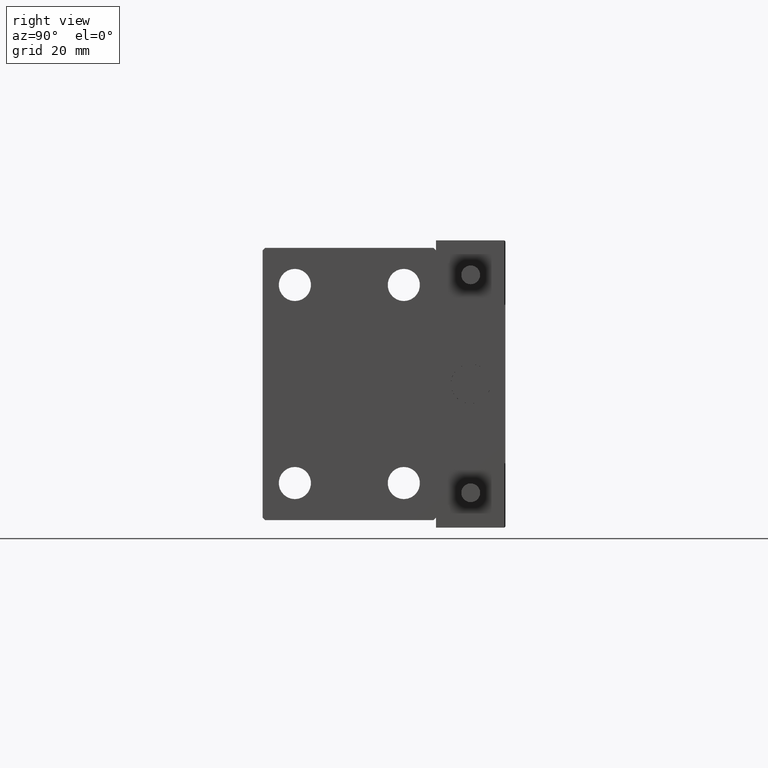
[diagram: clean part render]
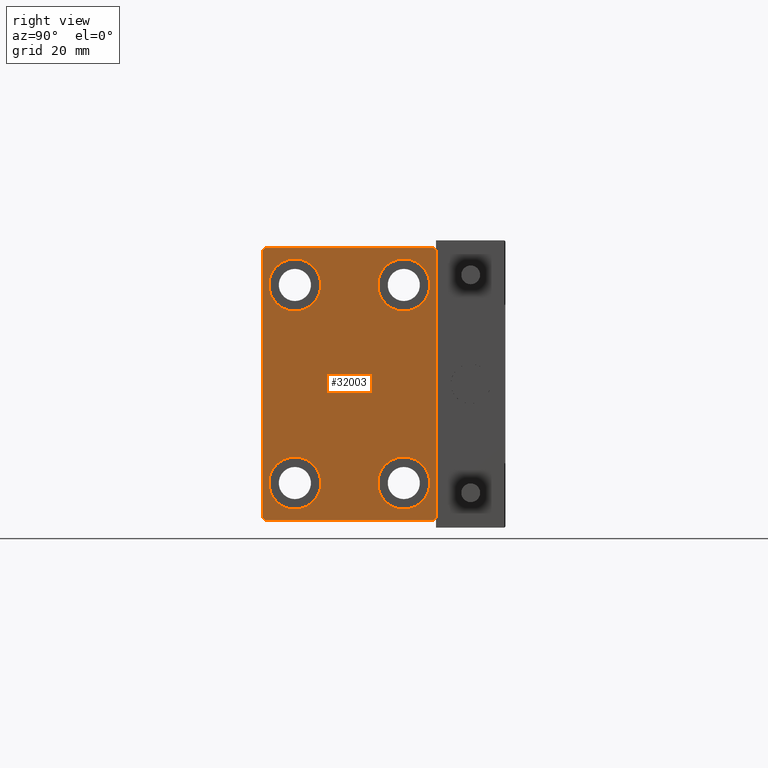
[diagram: same view with one face highlighted and labeled with its STEP entity id]
A machine part, right view. The second image highlights one B-rep face of the part: STEP entity #32003.
In plain terms, the highlighted planar face has unit normal (1, 0, 0).
Its self-contained STEP definition (entity closure, byte-faithful):
#1025 = CARTESIAN_POINT ( 'NONE',  ( 56.00000000000000000, 0.000000000000000000, 0.000000000000000000 ) ) ;
#1709 = CARTESIAN_POINT ( 'NONE',  ( 56.00000000000000000, 22.25000000000000355, 22.25000000000000355 ) ) ;
#1714 = EDGE_CURVE ( 'NONE', #36462, #12818, #22397, .T. ) ;
#1854 = CARTESIAN_POINT ( 'NONE',  ( 56.00000000000000000, -11.00000000000000355, -20.00000000000000000 ) ) ;
#1976 = EDGE_CURVE ( 'NONE', #32033, #21874, #10787, .T. ) ;
#2776 = VERTEX_POINT ( 'NONE', #5927 ) ;
#2798 = ORIENTED_EDGE ( 'NONE', *, *, #29977, .T. ) ;
#4032 = AXIS2_PLACEMENT_3D ( 'NONE', #49110, #44752, #40900 ) ;
#4893 = FACE_BOUND ( 'NONE', #46998, .T. ) ;
#5674 = ORIENTED_EDGE ( 'NONE', *, *, #43158, .T. ) ;
#5927 = CARTESIAN_POINT ( 'NONE',  ( 56.00000000000000000, -17.50000000000000000, 26.99999999999998934 ) ) ;
#6029 = VECTOR ( 'NONE', #42955, 1000.000000000000000 ) ;
#6031 = DIRECTION ( 'NONE',  ( -0.000000000000000000, 0.7071067811865474617, 0.7071067811865474617 ) ) ;
#6176 = CARTESIAN_POINT ( 'NONE',  ( 56.00000000000000000, -17.50000000000000000, -27.50000000000000355 ) ) ;
#6290 = LINE ( 'NONE', #25801, #28647 ) ;
#6356 = CARTESIAN_POINT ( 'NONE',  ( 56.00000000000000000, -11.00000000000000355, 14.75000000000000000 ) ) ;
#6592 = CARTESIAN_POINT ( 'NONE',  ( 56.00000000000000000, -11.00000000000000355, -25.25000000000000000 ) ) ;
#6769 = CARTESIAN_POINT ( 'NONE',  ( 56.00000000000000000, 11.00000000000000355, -20.00000000000000000 ) ) ;
#7352 = ORIENTED_EDGE ( 'NONE', *, *, #26004, .T. ) ;
#8094 = VECTOR ( 'NONE', #24412, 1000.000000000000000 ) ;
#8243 = CARTESIAN_POINT ( 'NONE',  ( 56.00000000000000000, -16.99999999999999289, -27.50000000000000355 ) ) ;
#8522 = CARTESIAN_POINT ( 'NONE',  ( 56.00000000000000000, -11.00000000000000355, -14.75000000000000000 ) ) ;
#8531 = VECTOR ( 'NONE', #22585, 1000.000000000000114 ) ;
#9296 = ORIENTED_EDGE ( 'NONE', *, *, #26886, .T. ) ;
#9471 = EDGE_CURVE ( 'NONE', #38296, #15942, #11795, .T. ) ;
#9665 = CARTESIAN_POINT ( 'NONE',  ( 56.00000000000000000, -11.00000000000000355, 20.00000000000000000 ) ) ;
#10297 = EDGE_CURVE ( 'NONE', #33309, #32033, #30060, .T. ) ;
#10347 = CARTESIAN_POINT ( 'NONE',  ( 56.00000000000000000, -11.00000000000000355, 25.25000000000000000 ) ) ;
#10378 = AXIS2_PLACEMENT_3D ( 'NONE', #9665, #29447, #29952 ) ;
#10787 = LINE ( 'NONE', #6176, #44673 ) ;
#11795 = CIRCLE ( 'NONE', #49568, 5.250000000000000888 ) ;
#11807 = ORIENTED_EDGE ( 'NONE', *, *, #44709, .T. ) ;
#12818 = VERTEX_POINT ( 'NONE', #16988 ) ;
#13070 = CIRCLE ( 'NONE', #41815, 5.250000000000000888 ) ;
#13782 = CIRCLE ( 'NONE', #17894, 5.250000000000000888 ) ;
#13963 = ORIENTED_EDGE ( 'NONE', *, *, #36963, .T. ) ;
#14132 = DIRECTION ( 'NONE',  ( 0.000000000000000000, 0.000000000000000000, 1.000000000000000000 ) ) ;
#15048 = VERTEX_POINT ( 'NONE', #6356 ) ;
#15547 = VECTOR ( 'NONE', #26622, 1000.000000000000114 ) ;
#15576 = VECTOR ( 'NONE', #30100, 1000.000000000000114 ) ;
#15942 = VERTEX_POINT ( 'NONE', #17488 ) ;
#16988 = CARTESIAN_POINT ( 'NONE',  ( 56.00000000000000000, 17.50000000000000000, 26.99999999999999645 ) ) ;
#17333 = VERTEX_POINT ( 'NONE', #38858 ) ;
#17488 = CARTESIAN_POINT ( 'NONE',  ( 56.00000000000000000, 11.00000000000000355, -14.75000000000000000 ) ) ;
#17514 = LINE ( 'NONE', #41166, #15576 ) ;
#17894 = AXIS2_PLACEMENT_3D ( 'NONE', #28654, #24529, #43832 ) ;
#18133 = DIRECTION ( 'NONE',  ( -1.000000000000000000, -0.000000000000000000, -0.000000000000000000 ) ) ;
#18159 = EDGE_LOOP ( 'NONE', ( #9296, #2798, #27601, #40861, #29378, #43505, #19947, #13963 ) ) ;
#18230 = CARTESIAN_POINT ( 'NONE',  ( 56.00000000000000000, -22.25000000000000355, -22.25000000000000355 ) ) ;
#18329 = VERTEX_POINT ( 'NONE', #47913 ) ;
#18754 = ORIENTED_EDGE ( 'NONE', *, *, #9471, .T. ) ;
#19101 = EDGE_CURVE ( 'NONE', #15048, #31733, #29229, .T. ) ;
#19632 = CIRCLE ( 'NONE', #4032, 5.250000000000000888 ) ;
#19804 = FACE_BOUND ( 'NONE', #44920, .T. ) ;
#19947 = ORIENTED_EDGE ( 'NONE', *, *, #1714, .T. ) ;
#20007 = CARTESIAN_POINT ( 'NONE',  ( 56.00000000000000000, -17.50000000000000000, -26.99999999999999645 ) ) ;
#20109 = CARTESIAN_POINT ( 'NONE',  ( 56.00000000000000000, 11.00000000000000355, -25.25000000000000000 ) ) ;
#20565 = FACE_BOUND ( 'NONE', #26413, .T. ) ;
#20618 = CIRCLE ( 'NONE', #49376, 5.250000000000000888 ) ;
#20783 = VERTEX_POINT ( 'NONE', #8522 ) ;
#21172 = ORIENTED_EDGE ( 'NONE', *, *, #29671, .T. ) ;
#21221 = AXIS2_PLACEMENT_3D ( 'NONE', #41898, #30818, #14132 ) ;
#21834 = DIRECTION ( 'NONE',  ( 0.000000000000000000, 1.000000000000000000, 0.000000000000000000 ) ) ;
#21874 = VERTEX_POINT ( 'NONE', #39088 ) ;
#22397 = LINE ( 'NONE', #27267, #6029 ) ;
#22525 = EDGE_CURVE ( 'NONE', #20783, #47107, #13782, .T. ) ;
#22585 = DIRECTION ( 'NONE',  ( -0.000000000000000000, 0.7071067811865474617, -0.7071067811865474617 ) ) ;
#23687 = ORIENTED_EDGE ( 'NONE', *, *, #19101, .T. ) ;
#23927 = ORIENTED_EDGE ( 'NONE', *, *, #22525, .T. ) ;
#24412 = DIRECTION ( 'NONE',  ( 0.000000000000000000, 0.000000000000000000, -1.000000000000000000 ) ) ;
#24529 = DIRECTION ( 'NONE',  ( -1.000000000000000000, -0.000000000000000000, -0.000000000000000000 ) ) ;
#24583 = VECTOR ( 'NONE', #34763, 1000.000000000000000 ) ;
#25097 = LINE ( 'NONE', #1709, #15547 ) ;
#25801 = CARTESIAN_POINT ( 'NONE',  ( 56.00000000000000000, 22.25000000000000711, -22.25000000000000711 ) ) ;
#26004 = EDGE_CURVE ( 'NONE', #50026, #17333, #19632, .T. ) ;
#26413 = EDGE_LOOP ( 'NONE', ( #30919, #7352 ) ) ;
#26622 = DIRECTION ( 'NONE',  ( -0.000000000000000000, -0.7071067811865474617, 0.7071067811865474617 ) ) ;
#26886 = EDGE_CURVE ( 'NONE', #18329, #30523, #35265, .T. ) ;
#27267 = CARTESIAN_POINT ( 'NONE',  ( 56.00000000000000000, 17.50000000000000711, -27.50000000000000355 ) ) ;
#27601 = ORIENTED_EDGE ( 'NONE', *, *, #35994, .T. ) ;
#28647 = VECTOR ( 'NONE', #6031, 1000.000000000000114 ) ;
#28654 = CARTESIAN_POINT ( 'NONE',  ( 56.00000000000000000, -11.00000000000000355, -20.00000000000000000 ) ) ;
#29229 = CIRCLE ( 'NONE', #10378, 5.250000000000000888 ) ;
#29378 = ORIENTED_EDGE ( 'NONE', *, *, #1976, .T. ) ;
#29398 = DIRECTION ( 'NONE',  ( -1.000000000000000000, -0.000000000000000000, -0.000000000000000000 ) ) ;
#29447 = DIRECTION ( 'NONE',  ( -1.000000000000000000, -0.000000000000000000, -0.000000000000000000 ) ) ;
#29671 = EDGE_CURVE ( 'NONE', #15942, #38296, #13070, .T. ) ;
#29952 = DIRECTION ( 'NONE',  ( 0.000000000000000000, 0.000000000000000000, 1.000000000000000000 ) ) ;
#29977 = EDGE_CURVE ( 'NONE', #30523, #2776, #17514, .T. ) ;
#30060 = LINE ( 'NONE', #18230, #8531 ) ;
#30100 = DIRECTION ( 'NONE',  ( 0.000000000000000000, -0.7071067811865474617, -0.7071067811865474617 ) ) ;
#30212 = CARTESIAN_POINT ( 'NONE',  ( 56.00000000000000000, -11.00000000000000355, 20.00000000000000000 ) ) ;
#30523 = VERTEX_POINT ( 'NONE', #38008 ) ;
#30818 = DIRECTION ( 'NONE',  ( -1.000000000000000000, -0.000000000000000000, -0.000000000000000000 ) ) ;
#30919 = ORIENTED_EDGE ( 'NONE', *, *, #36353, .T. ) ;
#31733 = VERTEX_POINT ( 'NONE', #10347 ) ;
#32003 = ADVANCED_FACE ( 'NONE', ( #39871, #4893, #20565, #19804, #35497 ), #36258, .T. ) ;
#32033 = VERTEX_POINT ( 'NONE', #8243 ) ;
#33309 = VERTEX_POINT ( 'NONE', #20007 ) ;
#33807 = DIRECTION ( 'NONE',  ( 0.000000000000000000, 0.000000000000000000, 1.000000000000000000 ) ) ;
#33844 = AXIS2_PLACEMENT_3D ( 'NONE', #30212, #18133, #33807 ) ;
#34763 = DIRECTION ( 'NONE',  ( 0.000000000000000000, -1.000000000000000000, -1.982541115402065110E-16 ) ) ;
#35179 = CARTESIAN_POINT ( 'NONE',  ( 56.00000000000000000, 17.50000000000000711, -27.00000000000000355 ) ) ;
#35265 = LINE ( 'NONE', #39387, #24583 ) ;
#35497 = FACE_OUTER_BOUND ( 'NONE', #18159, .T. ) ;
#35541 = EDGE_CURVE ( 'NONE', #21874, #36462, #6290, .T. ) ;
#35994 = EDGE_CURVE ( 'NONE', #2776, #33309, #39107, .T. ) ;
#36258 = PLANE ( 'NONE',  #42696 ) ;
#36353 = EDGE_CURVE ( 'NONE', #17333, #50026, #43392, .T. ) ;
#36462 = VERTEX_POINT ( 'NONE', #35179 ) ;
#36963 = EDGE_CURVE ( 'NONE', #12818, #18329, #25097, .T. ) ;
#38008 = CARTESIAN_POINT ( 'NONE',  ( 56.00000000000000000, -16.99999999999999289, 27.49999999999999645 ) ) ;
#38296 = VERTEX_POINT ( 'NONE', #20109 ) ;
#38858 = CARTESIAN_POINT ( 'NONE',  ( 56.00000000000000000, 11.00000000000000355, 14.75000000000000000 ) ) ;
#39088 = CARTESIAN_POINT ( 'NONE',  ( 56.00000000000000000, 17.00000000000000711, -27.50000000000000355 ) ) ;
#39107 = LINE ( 'NONE', #42949, #8094 ) ;
#39387 = CARTESIAN_POINT ( 'NONE',  ( 56.00000000000000000, 17.50000000000000000, 27.50000000000000355 ) ) ;
#39871 = FACE_BOUND ( 'NONE', #44682, .T. ) ;
#40861 = ORIENTED_EDGE ( 'NONE', *, *, #10297, .T. ) ;
#40900 = DIRECTION ( 'NONE',  ( 0.000000000000000000, 0.000000000000000000, 1.000000000000000000 ) ) ;
#41166 = CARTESIAN_POINT ( 'NONE',  ( 56.00000000000000000, -22.24999999999999645, 22.24999999999999645 ) ) ;
#41625 = DIRECTION ( 'NONE',  ( -1.000000000000000000, -0.000000000000000000, -0.000000000000000000 ) ) ;
#41815 = AXIS2_PLACEMENT_3D ( 'NONE', #6769, #29398, #48695 ) ;
#41898 = CARTESIAN_POINT ( 'NONE',  ( 56.00000000000000000, 11.00000000000000355, 20.00000000000000000 ) ) ;
#42082 = CIRCLE ( 'NONE', #33844, 5.250000000000000888 ) ;
#42696 = AXIS2_PLACEMENT_3D ( 'NONE', #1025, #48104, #43469 ) ;
#42949 = CARTESIAN_POINT ( 'NONE',  ( 56.00000000000000000, -17.50000000000000000, 27.49999999999999645 ) ) ;
#42955 = DIRECTION ( 'NONE',  ( 0.000000000000000000, -1.261617073437677752E-16, 1.000000000000000000 ) ) ;
#43158 = EDGE_CURVE ( 'NONE', #47107, #20783, #20618, .T. ) ;
#43392 = CIRCLE ( 'NONE', #21221, 5.250000000000000888 ) ;
#43469 = DIRECTION ( 'NONE',  ( 0.000000000000000000, 0.000000000000000000, -1.000000000000000000 ) ) ;
#43505 = ORIENTED_EDGE ( 'NONE', *, *, #35541, .T. ) ;
#43832 = DIRECTION ( 'NONE',  ( 0.000000000000000000, 0.000000000000000000, 1.000000000000000000 ) ) ;
#44673 = VECTOR ( 'NONE', #21834, 1000.000000000000000 ) ;
#44682 = EDGE_LOOP ( 'NONE', ( #18754, #21172 ) ) ;
#44709 = EDGE_CURVE ( 'NONE', #31733, #15048, #42082, .T. ) ;
#44752 = DIRECTION ( 'NONE',  ( -1.000000000000000000, -0.000000000000000000, -0.000000000000000000 ) ) ;
#44920 = EDGE_LOOP ( 'NONE', ( #5674, #23927 ) ) ;
#45821 = DIRECTION ( 'NONE',  ( 0.000000000000000000, 0.000000000000000000, 1.000000000000000000 ) ) ;
#46998 = EDGE_LOOP ( 'NONE', ( #23687, #11807 ) ) ;
#47107 = VERTEX_POINT ( 'NONE', #6592 ) ;
#47781 = CARTESIAN_POINT ( 'NONE',  ( 56.00000000000000000, 11.00000000000000355, 25.25000000000000000 ) ) ;
#47913 = CARTESIAN_POINT ( 'NONE',  ( 56.00000000000000000, 16.99999999999999289, 27.50000000000000355 ) ) ;
#48104 = DIRECTION ( 'NONE',  ( 1.000000000000000000, 0.000000000000000000, 0.000000000000000000 ) ) ;
#48663 = DIRECTION ( 'NONE',  ( -1.000000000000000000, -0.000000000000000000, -0.000000000000000000 ) ) ;
#48695 = DIRECTION ( 'NONE',  ( 0.000000000000000000, 0.000000000000000000, 1.000000000000000000 ) ) ;
#49110 = CARTESIAN_POINT ( 'NONE',  ( 56.00000000000000000, 11.00000000000000355, 20.00000000000000000 ) ) ;
#49341 = CARTESIAN_POINT ( 'NONE',  ( 56.00000000000000000, 11.00000000000000355, -20.00000000000000000 ) ) ;
#49376 = AXIS2_PLACEMENT_3D ( 'NONE', #1854, #48663, #45821 ) ;
#49568 = AXIS2_PLACEMENT_3D ( 'NONE', #49341, #41625, #49588 ) ;
#49588 = DIRECTION ( 'NONE',  ( 0.000000000000000000, 0.000000000000000000, 1.000000000000000000 ) ) ;
#50026 = VERTEX_POINT ( 'NONE', #47781 ) ;